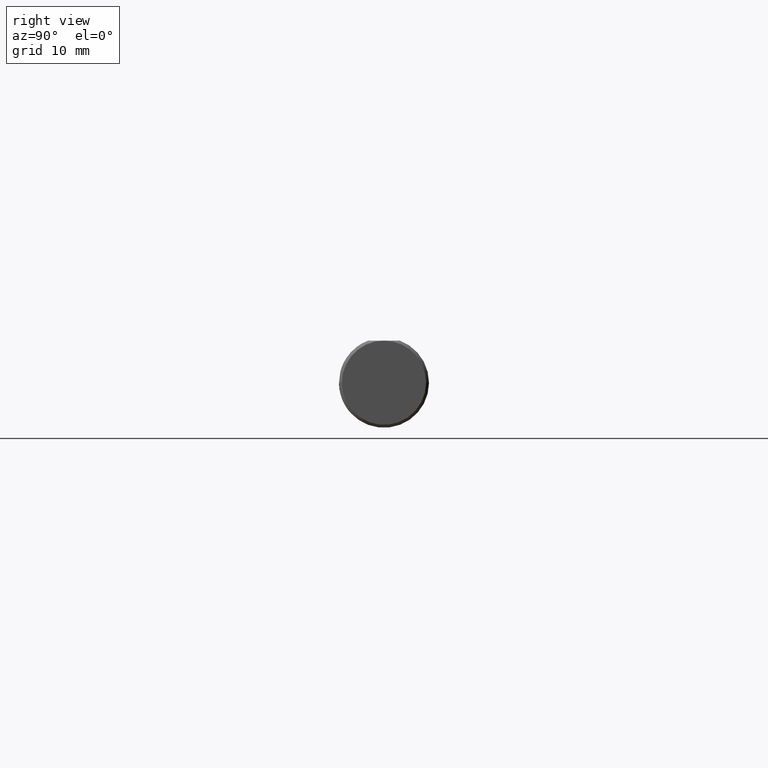
[diagram: clean part render]
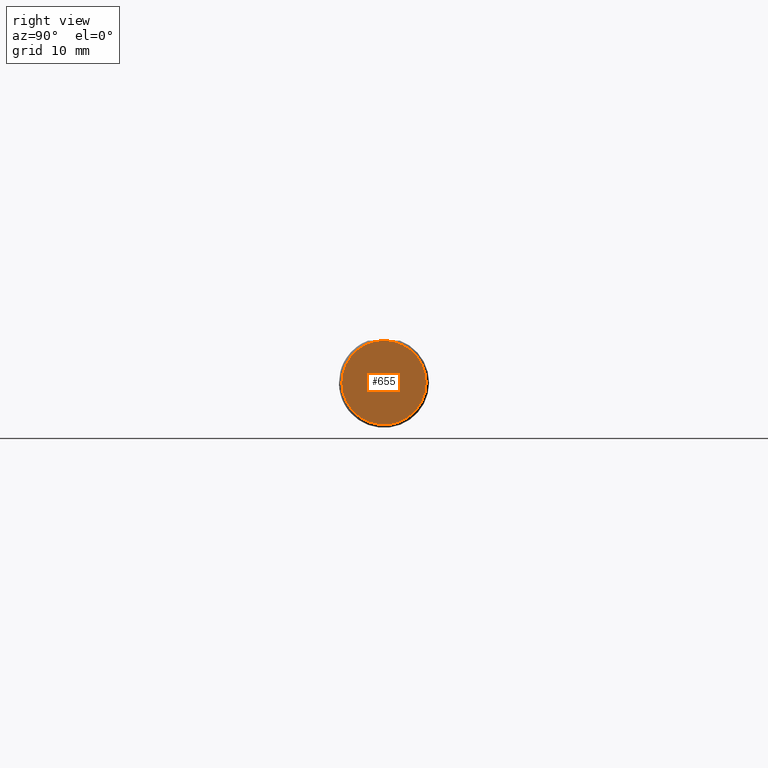
[diagram: same view with one face highlighted and labeled with its STEP entity id]
A machine part, right view. The second image highlights one B-rep face of the part: STEP entity #655.
In plain terms, the highlighted planar face has unit normal (1, 0, -0).
Its self-contained STEP definition (entity closure, byte-faithful):
#48 = CIRCLE ( 'NONE', #404, 0.1461000000000006183 ) ;
#52 = EDGE_CURVE ( 'NONE', #662, #713, #48, .T. ) ;
#53 = ORIENTED_EDGE ( 'NONE', *, *, #392, .T. ) ;
#152 = DIRECTION ( 'NONE',  ( -1.224646799147352961E-16, 1.000000000000000000, 0.000000000000000000 ) ) ;
#167 = AXIS2_PLACEMENT_3D ( 'NONE', #822, #826, #152 ) ;
#181 = DIRECTION ( 'NONE',  ( 1.000000000000000000, 1.224646799147352961E-16, -0.000000000000000000 ) ) ;
#209 = AXIS2_PLACEMENT_3D ( 'NONE', #570, #181, #724 ) ;
#240 = CARTESIAN_POINT ( 'NONE',  ( 2.745045800288798215E-17, -0.1461000000000003685, 0.000000000000000000 ) ) ;
#257 = VERTEX_POINT ( 'NONE', #762 ) ;
#287 = CIRCLE ( 'NONE', #167, 0.1461000000000006183 ) ;
#291 = ORIENTED_EDGE ( 'NONE', *, *, #688, .T. ) ;
#355 = CIRCLE ( 'NONE', #499, 0.1461000000000006183 ) ;
#375 = CARTESIAN_POINT ( 'NONE',  ( 9.558368267345076472E-18, 2.449293598294705921E-16, 0.000000000000000000 ) ) ;
#388 = CARTESIAN_POINT ( 'NONE',  ( 9.558368267345076472E-18, 2.449293598294705921E-16, 0.000000000000000000 ) ) ;
#392 = EDGE_CURVE ( 'NONE', #257, #662, #355, .T. ) ;
#393 = DIRECTION ( 'NONE',  ( 1.000000000000000000, 1.224646799147352961E-16, -0.000000000000000000 ) ) ;
#404 = AXIS2_PLACEMENT_3D ( 'NONE', #375, #452, #656 ) ;
#430 = ORIENTED_EDGE ( 'NONE', *, *, #52, .T. ) ;
#433 = EDGE_LOOP ( 'NONE', ( #430, #291, #53 ) ) ;
#440 = PLANE ( 'NONE',  #209 ) ;
#452 = DIRECTION ( 'NONE',  ( 1.000000000000000000, 1.224646799147352961E-16, -0.000000000000000000 ) ) ;
#490 = CARTESIAN_POINT ( 'NONE',  ( -3.241309669837331952E-33, 2.086455426436077518E-16, 0.1461000000000000354 ) ) ;
#499 = AXIS2_PLACEMENT_3D ( 'NONE', #388, #393, #665 ) ;
#570 = CARTESIAN_POINT ( 'NONE',  ( 9.558368267345107287E-18, 1.170562510367581579E-33, 0.000000000000000000 ) ) ;
#655 = ADVANCED_FACE ( 'NONE', ( #787 ), #440, .T. ) ;
#656 = DIRECTION ( 'NONE',  ( -1.224646799147352961E-16, 1.000000000000000000, 0.000000000000000000 ) ) ;
#662 = VERTEX_POINT ( 'NONE', #490 ) ;
#665 = DIRECTION ( 'NONE',  ( -1.224646799147352961E-16, 1.000000000000000000, 0.000000000000000000 ) ) ;
#688 = EDGE_CURVE ( 'NONE', #713, #257, #287, .T. ) ;
#713 = VERTEX_POINT ( 'NONE', #240 ) ;
#724 = DIRECTION ( 'NONE',  ( -1.224646799147352961E-16, 1.000000000000000000, 0.000000000000000000 ) ) ;
#762 = CARTESIAN_POINT ( 'NONE',  ( -8.333721468197827666E-18, 0.1461000000000008403, 1.850441313511654549E-17 ) ) ;
#787 = FACE_OUTER_BOUND ( 'NONE', #433, .T. ) ;
#822 = CARTESIAN_POINT ( 'NONE',  ( 9.558368267345076472E-18, 2.449293598294705921E-16, 0.000000000000000000 ) ) ;
#826 = DIRECTION ( 'NONE',  ( 1.000000000000000000, 1.224646799147352961E-16, -0.000000000000000000 ) ) ;